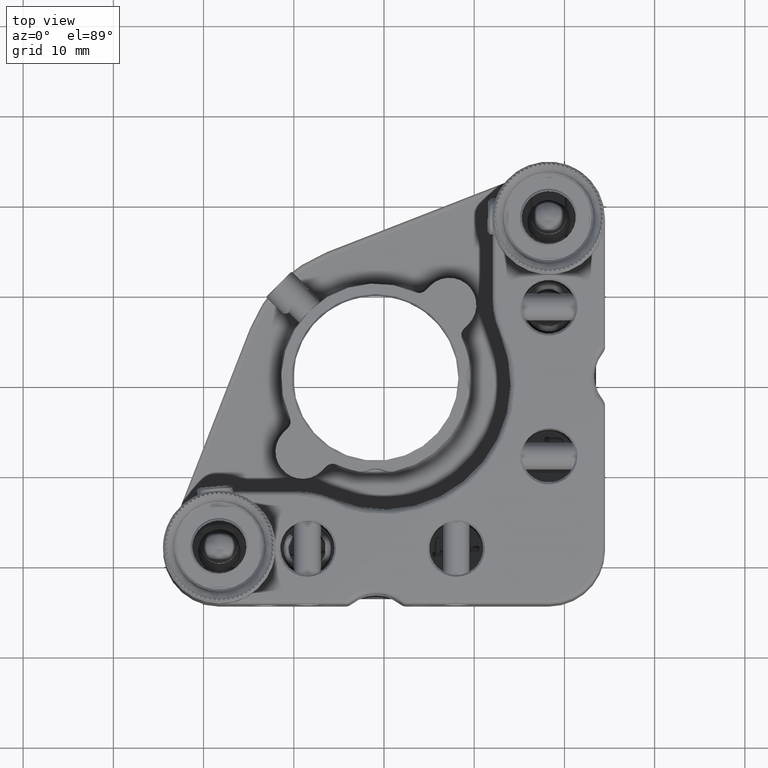
[diagram: clean part render]
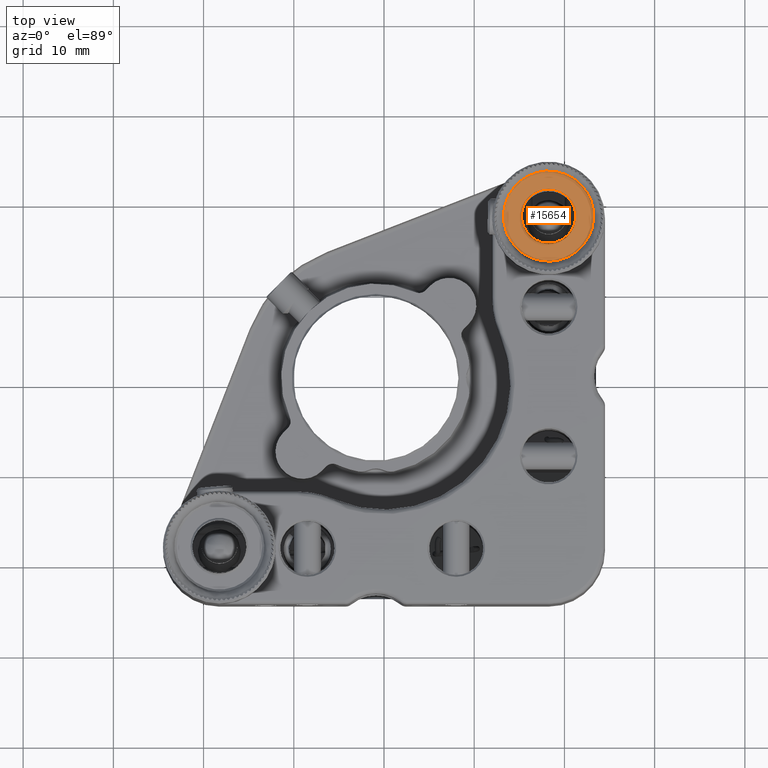
[diagram: same view with one face highlighted and labeled with its STEP entity id]
A machine part, top view. The second image highlights one B-rep face of the part: STEP entity #15654.
In plain terms, the highlighted planar face has unit normal (-0, 0, -1).
Its self-contained STEP definition (entity closure, byte-faithful):
#405 = CARTESIAN_POINT ( 'NONE',  ( 13.67365976639791469, 20.26433113545980547, 24.60182608337567700 ) ) ;
#621 = CARTESIAN_POINT ( 'NONE',  ( 14.66302551492563566, 14.76666624576032127, 24.60182608337567345 ) ) ;
#1452 = CARTESIAN_POINT ( 'NONE',  ( 13.40862482366465436, 19.51085544950492334, 24.60182608337568055 ) ) ;
#1546 = CARTESIAN_POINT ( 'NONE',  ( 22.85922637048088291, 20.18789980067289846, 24.60182608337567345 ) ) ;
#1670 = CARTESIAN_POINT ( 'NONE',  ( 16.20397904601927763, 22.81255923532000196, 24.60182608337568055 ) ) ;
#1723 = AXIS2_PLACEMENT_3D ( 'NONE', #11115, #27408, #3261 ) ;
#1760 = CARTESIAN_POINT ( 'NONE',  ( 23.14196106287346666, 19.28733140581575967, 24.60182608337567345 ) ) ;
#1973 = CARTESIAN_POINT ( 'NONE',  ( 22.86808685790177975, 16.33259532010335491, 24.60182608337567345 ) ) ;
#2194 = CARTESIAN_POINT ( 'NONE',  ( 21.13886691998643030, 14.14682175306613665, 24.60182608337567345 ) ) ;
#2229 = VERTEX_POINT ( 'NONE', #21044 ) ;
#2414 = CARTESIAN_POINT ( 'NONE',  ( 22.93210178720250170, 20.01255137350458924, 24.60182608337566990 ) ) ;
#2689 = EDGE_CURVE ( 'NONE', #19646, #19646, #11766, .T. ) ;
#2801 = CARTESIAN_POINT ( 'NONE',  ( 18.75283170494373763, 23.22993550731866108, 24.60182608337567345 ) ) ;
#2858 = CARTESIAN_POINT ( 'NONE',  ( 16.98914455048938521, 13.40862482366612163, 24.60182608337567700 ) ) ;
#2969 = FACE_BOUND ( 'NONE', #39714, .T. ) ;
#3082 = CARTESIAN_POINT ( 'NONE',  ( 15.42324684988452965, 14.12569885974330042, 24.60182608337567345 ) ) ;
#3244 = CARTESIAN_POINT ( 'NONE',  ( 21.62379289684585260, 21.95285820168390245, 24.60182608337566634 ) ) ;
#3261 = DIRECTION ( 'NONE',  ( 0.000000000000000000, -1.000000000000000000, 0.000000000000000000 ) ) ;
#3309 = CARTESIAN_POINT ( 'NONE',  ( 14.66302551492563566, 14.76666624576032127, 24.60182608337567345 ) ) ;
#3533 = CARTESIAN_POINT ( 'NONE',  ( 15.37232797818158581, 14.16107001068419713, 24.60182608337566990 ) ) ;
#3759 = CARTESIAN_POINT ( 'NONE',  ( 13.63191314209757721, 20.16740467989574626, 24.60182608337568055 ) ) ;
#4822 = CARTESIAN_POINT ( 'NONE',  ( 13.66367093065644411, 16.25849412788243953, 24.60182608337567700 ) ) ;
#5040 = CARTESIAN_POINT ( 'NONE',  ( 13.33598877163452912, 19.17735980592934908, 24.60182608337567700 ) ) ;
#5787 = CARTESIAN_POINT ( 'NONE',  ( 19.53160405754909235, 13.41626235976715620, 24.60182608337567700 ) ) ;
#6603 = CARTESIAN_POINT ( 'NONE',  ( 21.39255247683948014, 22.15103948585706206, 24.60182608337567700 ) ) ;
#6669 = CARTESIAN_POINT ( 'NONE',  ( 17.74716829505864268, 13.27006449268272981, 24.60182608337567345 ) ) ;
#6897 = CARTESIAN_POINT ( 'NONE',  ( 17.49216466073109544, 13.30696780947233826, 24.60182608337567345 ) ) ;
#7132 = CARTESIAN_POINT ( 'NONE',  ( 14.14676024553297040, 15.36128107573475532, 24.60182608337567345 ) ) ;
#7662 = CARTESIAN_POINT ( 'NONE',  ( 21.12767202181868598, 22.33892998931554530, 24.60182608337567700 ) ) ;
#7880 = CARTESIAN_POINT ( 'NONE',  ( 18.49567726759748609, 23.24695444474889428, 24.60182608337566990 ) ) ;
#8185 = CARTESIAN_POINT ( 'NONE',  ( 13.74489362176885976, 16.07823891859390741, 24.60182608337567345 ) ) ;
#8405 = CARTESIAN_POINT ( 'NONE',  ( 16.07817417046453912, 22.75507946868489029, 24.60182608337567345 ) ) ;
#8718 = CARTESIAN_POINT ( 'NONE',  ( 23.22993550731874279, 17.74716829506200710, 24.60182608337567700 ) ) ;
#8885 = EDGE_LOOP ( 'NONE', ( #8983, #22600 ) ) ;
#8949 = CARTESIAN_POINT ( 'NONE',  ( 22.82634023360189346, 16.23566886453992097, 24.60182608337568055 ) ) ;
#8983 = ORIENTED_EDGE ( 'NONE', *, *, #32659, .T. ) ;
#9056 = DIRECTION ( 'NONE',  ( -3.286757612891520699E-18, 2.415087734122745482E-17, -1.000000000000000000 ) ) ;
#9170 = CARTESIAN_POINT ( 'NONE',  ( 22.63201997721783698, 20.66792627486842804, 24.60182608337567700 ) ) ;
#11040 = CARTESIAN_POINT ( 'NONE',  ( 17.63578915826319715, 23.22413448589979978, 24.60182608337567345 ) ) ;
#11115 = CARTESIAN_POINT ( 'NONE',  ( 18.25000000000000000, 18.25000000000000355, 24.60182608342620370 ) ) ;
#11484 = EDGE_CURVE ( 'NONE', #14928, #2229, #19848, .T. ) ;
#11555 = CARTESIAN_POINT ( 'NONE',  ( 13.95174302041784742, 20.88238602248834042, 24.60182608337567345 ) ) ;
#11647 = CARTESIAN_POINT ( 'NONE',  ( 22.92351588309501764, 16.46926437158307976, 24.60182608337567345 ) ) ;
#11766 = CIRCLE ( 'NONE', #1723, 2.999999999912163151 ) ;
#11781 = CARTESIAN_POINT ( 'NONE',  ( 14.99458178589319957, 22.05835169514121574, 24.60182608337567345 ) ) ;
#11870 = CARTESIAN_POINT ( 'NONE',  ( 18.52149934445125723, 13.24552018620195604, 24.60182608337567700 ) ) ;
#11999 = CARTESIAN_POINT ( 'NONE',  ( 16.31210019932697008, 22.85922637048093264, 24.60182608337566634 ) ) ;
#12308 = CARTESIAN_POINT ( 'NONE',  ( 22.54825697958252206, 15.61761397750989566, 24.60182608337568055 ) ) ;
#12526 = CARTESIAN_POINT ( 'NONE',  ( 20.29602095398000472, 13.68744076467975113, 24.60182608337567345 ) ) ;
#12851 = PLANE ( 'NONE',  #15184 ) ;
#13343 = CARTESIAN_POINT ( 'NONE',  ( 19.00783533927078039, 23.19303219052875775, 24.60182608337568055 ) ) ;
#14085 = CARTESIAN_POINT ( 'NONE',  ( 13.68742634885166076, 16.20401373251715071, 24.60182608337567700 ) ) ;
#14394 = CARTESIAN_POINT ( 'NONE',  ( 19.26382328261522403, 23.14685562146078368, 24.60182608337566990 ) ) ;
#14922 = CARTESIAN_POINT ( 'NONE',  ( 13.24552018620079252, 17.97850065554521848, 24.60182608337567700 ) ) ;
#14928 = VERTEX_POINT ( 'NONE', #22174 ) ;
#15137 = CARTESIAN_POINT ( 'NONE',  ( 13.35314437854061786, 19.26382328261870214, 24.60182608337567345 ) ) ;
#15184 = AXIS2_PLACEMENT_3D ( 'NONE', #29593, #9056, #36740 ) ;
#15229 = CARTESIAN_POINT ( 'NONE',  ( 18.86421084172861740, 13.27586551409871340, 24.60182608337567345 ) ) ;
#15359 = CARTESIAN_POINT ( 'NONE',  ( 13.25304555525248773, 18.49567726759791952, 24.60182608337567345 ) ) ;
#15654 = ADVANCED_FACE ( 'NONE', ( #2969, #23551 ), #12851, .T. ) ;
#15875 = CARTESIAN_POINT ( 'NONE',  ( 20.66803727166058025, 13.86802615343327361, 24.60182608337567345 ) ) ;
#16096 = CARTESIAN_POINT ( 'NONE',  ( 19.77493875341964724, 13.48293058809130684, 24.60182608337566990 ) ) ;
#16475 = CARTESIAN_POINT ( 'NONE',  ( 19.51085544951185824, 23.09137517633254788, 24.60182608337568055 ) ) ;
#16693 = CARTESIAN_POINT ( 'NONE',  ( 20.14788052969011645, 22.87600529007058370, 24.60182608337567700 ) ) ;
#16920 = CARTESIAN_POINT ( 'NONE',  ( 20.26600386081137017, 22.82573234501383297, 24.60182608337567700 ) ) ;
#17434 = CARTESIAN_POINT ( 'NONE',  ( 13.37588340674773413, 17.13189064542451234, 24.60182608337566990 ) ) ;
#18576 = CARTESIAN_POINT ( 'NONE',  ( 22.81726093983644432, 16.21517780903711525, 24.60182608337568055 ) ) ;
#18697 = CARTESIAN_POINT ( 'NONE',  ( 15.83196272833711404, 22.63197384656589861, 24.60182608337567345 ) ) ;
#19001 = CARTESIAN_POINT ( 'NONE',  ( 23.09137517633450543, 16.98914455049391492, 24.60182608337567700 ) ) ;
#19219 = CARTESIAN_POINT ( 'NONE',  ( 21.50541821410503829, 14.44164830485815010, 24.60182608337567345 ) ) ;
#19445 = CARTESIAN_POINT ( 'NONE',  ( 19.36810935457167560, 13.37588340674714615, 24.60182608337566990 ) ) ;
#19646 = VERTEX_POINT ( 'NONE', #37273 ) ;
#19848 = B_SPLINE_CURVE_WITH_KNOTS ( 'NONE', 3,
 ( #32385, #29058, #29486, #9170, #32816, #29276, #33038, #39118, #1546, #2414, #35533, #42476, #35748, #1760, #25700, #42692, #39549, #8718, #22350, #42912, #35968, #19001, #32602, #11647, #1973, #22571, #8949, #18576, #12308, #29710, #19219, #2194, #15875, #43130, #12526, #26138, #39768, #22795, #36405, #16096, #5787, #19445, #25482, #15229, #11870, #20106, #6669, #6897, #30372, #26577, #2858, #39986, #23008, #30148, #20554, #27237, #33921, #44011, #23234, #36854, #3082, #36631, #3533, #40865, #27013, #3309 ),
 .UNSPECIFIED., .F., .F.,
 ( 4, 1, 1, 1, 1, 2, 2, 1, 2, 2, 2, 1, 2, 2, 1, 1, 1, 2, 2, 2, 1, 1, 1, 1, 2, 2, 1, 2, 2, 2, 1, 2, 2, 1, 1, 2, 2, 1, 1, 1, 2, 2, 4 ),
 ( 0.000000000000000000, 0.06249999999999339417, 0.09374999999998979983, 0.1093749999999881484, 0.1171874999999874822, 0.1210937499999875933, 0.1249999999999877043, 0.1562499999999853728, 0.1718749999999842903, 0.1874999999999832356, 0.2499999999999802380, 0.2812499999999790168, 0.2968749999999780731, 0.3124999999999770739, 0.3437499999999752975, 0.3593749999999741318, 0.3671874999999739653, 0.3710937499999738542, 0.3749999999999737987, 0.4999999999999797939, 0.5624999999999826805, 0.5937499999999840128, 0.6093749999999846789, 0.6171874999999853451, 0.6210937499999856781, 0.6249999999999859002, 0.6562499999999863443, 0.6718749999999865663, 0.6874999999999867883, 0.7499999999999881206, 0.7812499999999886757, 0.7968749999999886757, 0.8124999999999886757, 0.8437499999999893419, 0.8593749999999900080, 0.8671874999999906741, 0.8749999999999914513, 0.9062499999999935607, 0.9218749999999948930, 0.9296874999999956701, 0.9335937499999958922, 0.9374999999999961142, 1.000000000000000000 ),
 .UNSPECIFIED. ) ;
#20106 = CARTESIAN_POINT ( 'NONE',  ( 18.00432273240387460, 13.25304555525191219, 24.60182608337567345 ) ) ;
#20266 = CARTESIAN_POINT ( 'NONE',  ( 21.02656426447890681, 22.40855633812780923, 24.60182608337567345 ) ) ;
#20486 = CARTESIAN_POINT ( 'NONE',  ( 20.03073562842448396, 22.92351588309244903, 24.60182608337567345 ) ) ;
#20554 = CARTESIAN_POINT ( 'NONE',  ( 16.27434959675812820, 13.65668230376170911, 24.60182608337566990 ) ) ;
#20785 = CARTESIAN_POINT ( 'NONE',  ( 13.86798002278339226, 15.83207372513031608, 24.60182608337567345 ) ) ;
#21044 = CARTESIAN_POINT ( 'NONE',  ( 14.66302551492563566, 14.76666624576032127, 24.60182608337567345 ) ) ;
#21818 = CARTESIAN_POINT ( 'NONE',  ( 13.48293058809249700, 16.72506124657272153, 24.60182608337567345 ) ) ;
#22037 = CARTESIAN_POINT ( 'NONE',  ( 14.44161315769633624, 14.99466635487850219, 24.60182608337566990 ) ) ;
#22174 = CARTESIAN_POINT ( 'NONE',  ( 21.83697448507436434, 21.73333375423968761, 24.60182608337567345 ) ) ;
#22350 = CARTESIAN_POINT ( 'NONE',  ( 23.19303219052882170, 17.49216466073373155, 24.60182608337567345 ) ) ;
#22571 = CARTESIAN_POINT ( 'NONE',  ( 22.84319096309461372, 16.27439043767163795, 24.60182608337567345 ) ) ;
#22600 = ORIENTED_EDGE ( 'NONE', *, *, #11484, .T. ) ;
#22795 = CARTESIAN_POINT ( 'NONE',  ( 20.18789980067302636, 13.64077362951907624, 24.60182608337566634 ) ) ;
#23008 = CARTESIAN_POINT ( 'NONE',  ( 16.46926437157713607, 13.57648411690579593, 24.60182608337566634 ) ) ;
#23234 = CARTESIAN_POINT ( 'NONE',  ( 15.59179845303460610, 14.01376467586668184, 24.60182608337567345 ) ) ;
#23551 = FACE_OUTER_BOUND ( 'NONE', #8885, .T. ) ;
#23597 = CARTESIAN_POINT ( 'NONE',  ( 19.17735980592897604, 23.16401122836666815, 24.60182608337566634 ) ) ;
#23821 = CARTESIAN_POINT ( 'NONE',  ( 17.21266859418584971, 23.14196106287346311, 24.60182608337568055 ) ) ;
#24346 = CARTESIAN_POINT ( 'NONE',  ( 13.64802807698296050, 16.29494259227791275, 24.60182608337567345 ) ) ;
#24656 = CARTESIAN_POINT ( 'NONE',  ( 19.75396688891143526, 23.02372834938414670, 24.60182608337567345 ) ) ;
#25392 = CARTESIAN_POINT ( 'NONE',  ( 15.36113308001050015, 22.35317824693275313, 24.60182608337567345 ) ) ;
#25482 = CARTESIAN_POINT ( 'NONE',  ( 19.28733140581620020, 13.35803893712693480, 24.60182608337567345 ) ) ;
#25609 = CARTESIAN_POINT ( 'NONE',  ( 16.48744862649651566, 22.93210178720205406, 24.60182608337566990 ) ) ;
#25700 = CARTESIAN_POINT ( 'NONE',  ( 23.22413448589970031, 18.86421084173037954, 24.60182608337566634 ) ) ;
#26138 = CARTESIAN_POINT ( 'NONE',  ( 20.24152618849448260, 13.66367937421290080, 24.60182608337568055 ) ) ;
#26577 = CARTESIAN_POINT ( 'NONE',  ( 17.23617671738414714, 13.35314437853989666, 24.60182608337566990 ) ) ;
#26735 = CARTESIAN_POINT ( 'NONE',  ( 20.45063548604285586, 22.74261714333085749, 24.60182608337567345 ) ) ;
#26952 = CARTESIAN_POINT ( 'NONE',  ( 20.22565040324245444, 22.84331769623766917, 24.60182608337567700 ) ) ;
#27013 = CARTESIAN_POINT ( 'NONE',  ( 14.87620710314990191, 14.54714179832046916, 24.60182608337567345 ) ) ;
#27237 = CARTESIAN_POINT ( 'NONE',  ( 16.23399613919006867, 13.67426765498534458, 24.60182608337566634 ) ) ;
#27408 = DIRECTION ( 'NONE',  ( -4.028413892240081777E-16, 4.148272564906385470E-16, 1.000000000000000000 ) ) ;
#27706 = CARTESIAN_POINT ( 'NONE',  ( 13.41626235976808346, 16.96839594244491067, 24.60182608337566990 ) ) ;
#28007 = CARTESIAN_POINT ( 'NONE',  ( 21.07675315011282891, 22.37430114025825034, 24.60182608337566634 ) ) ;
#28532 = CARTESIAN_POINT ( 'NONE',  ( 13.57648411690387036, 20.03073562841538902, 24.60182608337567345 ) ) ;
#28751 = CARTESIAN_POINT ( 'NONE',  ( 13.27006449268374588, 18.75283170494446949, 24.60182608337567345 ) ) ;
#28971 = CARTESIAN_POINT ( 'NONE',  ( 16.25847381150510529, 22.83632062578695709, 24.60182608337566990 ) ) ;
#29058 = CARTESIAN_POINT ( 'NONE',  ( 22.05838684230460345, 21.50533364512055101, 24.60182608337567345 ) ) ;
#29276 = CARTESIAN_POINT ( 'NONE',  ( 22.81257365114873181, 20.29598626748246204, 24.60182608337567345 ) ) ;
#29486 = CARTESIAN_POINT ( 'NONE',  ( 22.35323975446866029, 21.13871892426356069, 24.60182608337567700 ) ) ;
#29593 = CARTESIAN_POINT ( 'NONE',  ( 18.25000000000000000, 18.25000000000000355, 24.60182608337567345 ) ) ;
#29710 = CARTESIAN_POINT ( 'NONE',  ( 22.18916483450897204, 15.10577993506062811, 24.60182608337567700 ) ) ;
#30148 = CARTESIAN_POINT ( 'NONE',  ( 16.35211947031092805, 13.62399470992828654, 24.60182608337567700 ) ) ;
#30372 = CARTESIAN_POINT ( 'NONE',  ( 17.32264019407221411, 13.33598877163402818, 24.60182608337567700 ) ) ;
#30523 = CARTESIAN_POINT ( 'NONE',  ( 16.72506124658036342, 23.01706941190862210, 24.60182608337567700 ) ) ;
#31045 = CARTESIAN_POINT ( 'NONE',  ( 13.65680903690500436, 20.22560956232783624, 24.60182608337567345 ) ) ;
#31347 = CARTESIAN_POINT ( 'NONE',  ( 21.11009285313462058, 22.35125007415292231, 24.60182608337567345 ) ) ;
#32079 = CARTESIAN_POINT ( 'NONE',  ( 13.30696780947313229, 19.00783533927135238, 24.60182608337567345 ) ) ;
#32385 = CARTESIAN_POINT ( 'NONE',  ( 21.83697448507436434, 21.73333375423968761, 24.60182608337567345 ) ) ;
#32602 = CARTESIAN_POINT ( 'NONE',  ( 23.02372834938759638, 16.74603311109865089, 24.60182608337567700 ) ) ;
#32659 = EDGE_CURVE ( 'NONE', #2229, #14928, #36645, .T. ) ;
#32816 = CARTESIAN_POINT ( 'NONE',  ( 22.75510637823185789, 20.42176108140536783, 24.60182608337567345 ) ) ;
#33038 = CARTESIAN_POINT ( 'NONE',  ( 22.83632906934377615, 20.24150587211734731, 24.60182608337567345 ) ) ;
#33921 = CARTESIAN_POINT ( 'NONE',  ( 16.04936451395141006, 13.75738285667249983, 24.60182608337567345 ) ) ;
#34382 = CARTESIAN_POINT ( 'NONE',  ( 13.56789821279858010, 16.48744862649214582, 24.60182608337566990 ) ) ;
#35533 = CARTESIAN_POINT ( 'NONE',  ( 23.01706941190938949, 19.77493875342155150, 24.60182608337567700 ) ) ;
#35659 = CARTESIAN_POINT ( 'NONE',  ( 13.64077362951898564, 16.31210019932753141, 24.60182608337567700 ) ) ;
#35748 = CARTESIAN_POINT ( 'NONE',  ( 23.12411659325319491, 19.36810935457262772, 24.60182608337567345 ) ) ;
#35968 = CARTESIAN_POINT ( 'NONE',  ( 23.14685562145979247, 17.23617671738189117, 24.60182608337567700 ) ) ;
#36405 = CARTESIAN_POINT ( 'NONE',  ( 20.01255137350349500, 13.56789821279791042, 24.60182608337566634 ) ) ;
#36631 = CARTESIAN_POINT ( 'NONE',  ( 15.38990714686398853, 14.14874992584789659, 24.60182608337567345 ) ) ;
#36645 = B_SPLINE_CURVE_WITH_KNOTS ( 'NONE', 3,
 ( #621, #22037, #7132, #20785, #8185, #14085, #4822, #24346, #35659, #34382, #21818, #27706, #17434, #37981, #41334, #14922, #15359, #28751, #32079, #5040, #15137, #1452, #42379, #28532, #3759, #31045, #405, #42155, #11555, #39027, #11781, #25392, #18697, #8405, #1670, #28971, #42605, #11999, #25609, #30523, #37227, #41630, #23821, #11040, #43944, #7880, #2801, #13343, #23597, #14394, #16475, #24656, #20486, #16693, #26952, #16920, #26735, #41857, #38290, #20266, #28007, #31347, #7662, #6603, #3244, #43725 ),
 .UNSPECIFIED., .F., .F.,
 ( 4, 1, 1, 1, 1, 2, 2, 1, 2, 2, 2, 1, 2, 2, 1, 1, 1, 2, 2, 2, 1, 1, 1, 1, 2, 2, 1, 2, 2, 2, 1, 2, 2, 1, 1, 2, 2, 1, 1, 1, 2, 2, 4 ),
 ( 0.000000000000000000, 0.06249999999999888978, 0.09374999999999827915, 0.1093749999999980571, 0.1171874999999979461, 0.1210937499999975714, 0.1249999999999971967, 0.1562499999999962808, 0.1718749999999958367, 0.1874999999999953926, 0.2499999999999935885, 0.2812499999999930056, 0.2968749999999930056, 0.3124999999999930056, 0.3437499999999930056, 0.3593749999999927836, 0.3671874999999927280, 0.3710937499999923395, 0.3749999999999920064, 0.4999999999999886202, 0.5624999999999866773, 0.5937499999999859002, 0.6093749999999852340, 0.6171874999999847899, 0.6210937499999847899, 0.6249999999999846789, 0.6562499999999854561, 0.6718749999999860112, 0.6874999999999864553, 0.7499999999999906741, 0.7812499999999924505, 0.7968749999999935607, 0.8124999999999947820, 0.8437499999999964473, 0.8593749999999972244, 0.8671874999999978906, 0.8749999999999985567, 0.9062500000000015543, 0.9218750000000028866, 0.9296875000000033307, 0.9335937500000031086, 0.9375000000000027756, 1.000000000000000000 ),
 .UNSPECIFIED. ) ;
#36740 = DIRECTION ( 'NONE',  ( 0.000000000000000000, 1.000000000000000000, 2.415087734122745482E-17 ) ) ;
#36854 = CARTESIAN_POINT ( 'NONE',  ( 15.47343573551670026, 14.09144366187475939, 24.60182608337568055 ) ) ;
#37227 = CARTESIAN_POINT ( 'NONE',  ( 16.96839594245091831, 23.08373764023279406, 24.60182608337567345 ) ) ;
#37273 = CARTESIAN_POINT ( 'NONE',  ( 18.25000000000000000, 15.25000000008783907, 24.60182608342620370 ) ) ;
#37981 = CARTESIAN_POINT ( 'NONE',  ( 13.35803893712717816, 17.21266859418205897, 24.60182608337567345 ) ) ;
#38271 = ORIENTED_EDGE ( 'NONE', *, *, #2689, .T. ) ;
#38290 = CARTESIAN_POINT ( 'NONE',  ( 20.90820154695786215, 22.48623532413770931, 24.60182608337566990 ) ) ;
#39027 = CARTESIAN_POINT ( 'NONE',  ( 14.31083516549455226, 21.39422006494065798, 24.60182608337566634 ) ) ;
#39118 = CARTESIAN_POINT ( 'NONE',  ( 22.85197192301714253, 20.20505740772197711, 24.60182608337567345 ) ) ;
#39549 = CARTESIAN_POINT ( 'NONE',  ( 23.24695444474894046, 18.00432273240579306, 24.60182608337566990 ) ) ;
#39714 = EDGE_LOOP ( 'NONE', ( #38271 ) ) ;
#39768 = CARTESIAN_POINT ( 'NONE',  ( 20.20506781367123139, 13.64803240173139542, 24.60182608337566634 ) ) ;
#39986 = CARTESIAN_POINT ( 'NONE',  ( 16.74603311109072479, 13.47627165061349608, 24.60182608337568411 ) ) ;
#40865 = CARTESIAN_POINT ( 'NONE',  ( 15.10744752315629214, 14.34896051414730778, 24.60182608337566634 ) ) ;
#41334 = CARTESIAN_POINT ( 'NONE',  ( 13.27586551409769733, 17.63578915827836013, 24.60182608337567700 ) ) ;
#41630 = CARTESIAN_POINT ( 'NONE',  ( 17.13189064542833862, 23.12411659325283964, 24.60182608337568411 ) ) ;
#41857 = CARTESIAN_POINT ( 'NONE',  ( 20.66645484108146391, 22.63259406008131336, 24.60182608337568055 ) ) ;
#42155 = CARTESIAN_POINT ( 'NONE',  ( 13.68273906016354680, 20.28482219096295225, 24.60182608337567345 ) ) ;
#42379 = CARTESIAN_POINT ( 'NONE',  ( 13.47627165061093102, 19.75396688889930275, 24.60182608337567345 ) ) ;
#42476 = CARTESIAN_POINT ( 'NONE',  ( 23.08373764023340158, 19.53160405755058804, 24.60182608337567345 ) ) ;
#42605 = CARTESIAN_POINT ( 'NONE',  ( 16.29493218632855545, 22.85196759826852997, 24.60182608337567345 ) ) ;
#42692 = CARTESIAN_POINT ( 'NONE',  ( 23.25447981379637241, 18.52149934444742030, 24.60182608337566990 ) ) ;
#42912 = CARTESIAN_POINT ( 'NONE',  ( 23.16401122836671789, 17.32264019407388744, 24.60182608337567700 ) ) ;
#43130 = CARTESIAN_POINT ( 'NONE',  ( 20.42182582953411440, 13.74492053131461589, 24.60182608337567700 ) ) ;
#43725 = CARTESIAN_POINT ( 'NONE',  ( 21.83697448507436434, 21.73333375423968761, 24.60182608337567345 ) ) ;
#43944 = CARTESIAN_POINT ( 'NONE',  ( 17.97850065554604271, 23.25447981379648610, 24.60182608337567345 ) ) ;
#44011 = CARTESIAN_POINT ( 'NONE',  ( 15.83354515890851921, 13.86740593992456283, 24.60182608337568411 ) ) ;